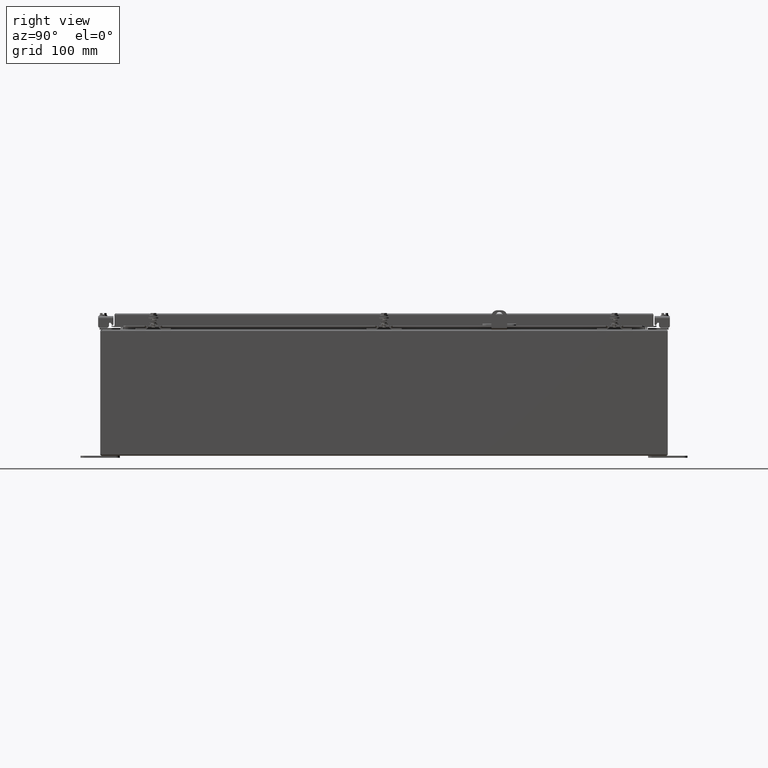
[diagram: clean part render]
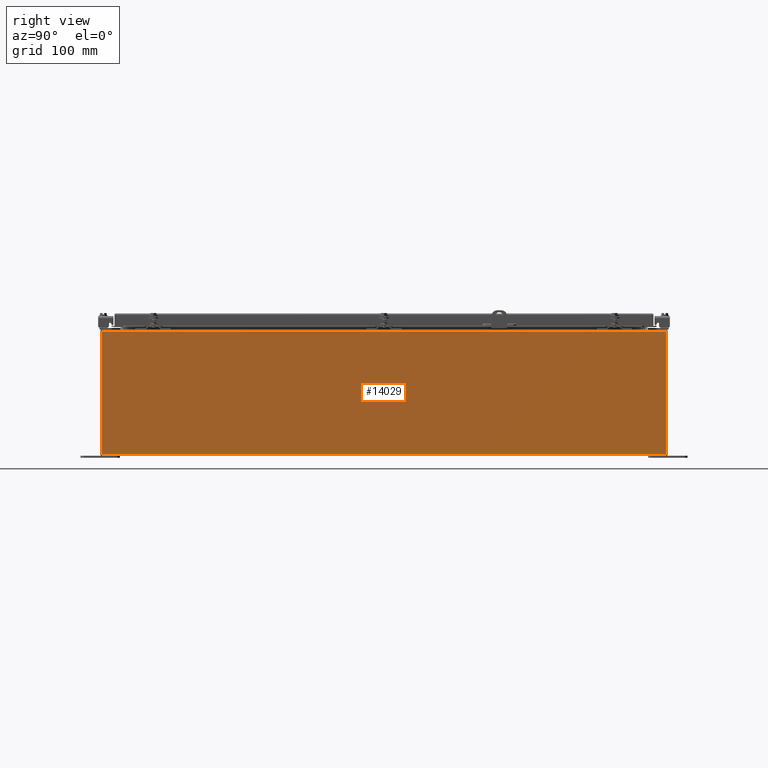
[diagram: same view with one face highlighted and labeled with its STEP entity id]
A machine part, right view. The second image highlights one B-rep face of the part: STEP entity #14029.
In plain terms, the highlighted planar face has unit normal (-1, -0, 0).
Its self-contained STEP definition (entity closure, byte-faithful):
#1299=PLANE('',#14878);
#1757=FACE_OUTER_BOUND('',#2557,.T.);
#2557=EDGE_LOOP('',(#10007,#10008,#10009,#10010));
#3426=LINE('',#20183,#4735);
#3427=LINE('',#20193,#4736);
#3428=LINE('',#20195,#4737);
#3429=LINE('',#20196,#4738);
#4735=VECTOR('',#16288,35.8505857864376);
#4736=VECTOR('',#16291,7.7895);
#4737=VECTOR('',#16292,35.8505857864376);
#4738=VECTOR('',#16293,7.7895);
#6535=VERTEX_POINT('',#20174);
#6536=VERTEX_POINT('',#20182);
#6537=VERTEX_POINT('',#20192);
#6538=VERTEX_POINT('',#20194);
#7888=EDGE_CURVE('',#6536,#6535,#3426,.T.);
#7890=EDGE_CURVE('',#6537,#6535,#3427,.T.);
#7891=EDGE_CURVE('',#6537,#6538,#3428,.T.);
#7892=EDGE_CURVE('',#6536,#6538,#3429,.T.);
#10007=ORIENTED_EDGE('',*,*,#7888,.T.);
#10008=ORIENTED_EDGE('',*,*,#7890,.F.);
#10009=ORIENTED_EDGE('',*,*,#7891,.T.);
#10010=ORIENTED_EDGE('',*,*,#7892,.F.);
#14029=ADVANCED_FACE('',(#1757),#1299,.F.);
#14878=AXIS2_PLACEMENT_3D('',#20191,#16289,#16290);
#16288=DIRECTION('',(-7.79927791204257E-17,1.,1.54637350126835E-33));
#16289=DIRECTION('center_axis',(-1.,-7.79927791204257E-17,5.42854902480362E-15));
#16290=DIRECTION('ref_axis',(4.51194637207663E-15,-7.77058984864498E-17,
1.));
#16291=DIRECTION('',(-5.39030285815812E-15,-4.19082355898663E-31,-1.));
#16292=DIRECTION('',(7.79927791204261E-17,-1.,7.80297527682372E-17));
#16293=DIRECTION('',(5.39030285815812E-15,4.19082355898663E-31,1.));
#20174=CARTESIAN_POINT('',(12.,17.9252928932188,0.105250000000002));
#20182=CARTESIAN_POINT('',(12.,-17.9252928932188,0.105250000000004));
#20183=CARTESIAN_POINT('',(12.,-3.21394668738061E-16,0.105250000000001));
#20191=CARTESIAN_POINT('Origin',(12.,2.14642641742851E-15,4.02153807738616));
#20192=CARTESIAN_POINT('',(12.,17.9252928932188,7.89475));
#20193=CARTESIAN_POINT('',(12.,17.9252928932188,0.105250000000002));
#20194=CARTESIAN_POINT('',(12.,-17.9252928932188,7.89475000000001));
#20195=CARTESIAN_POINT('',(12.,8.96264644660941,7.89475));
#20196=CARTESIAN_POINT('',(12.,-17.9252928932188,0.105250000000004));